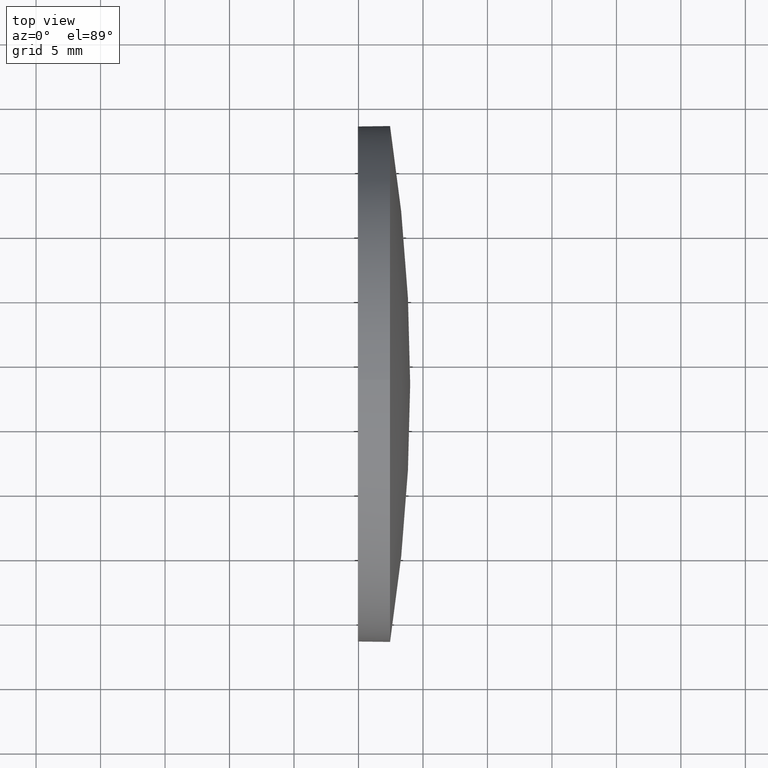
[diagram: clean part render]
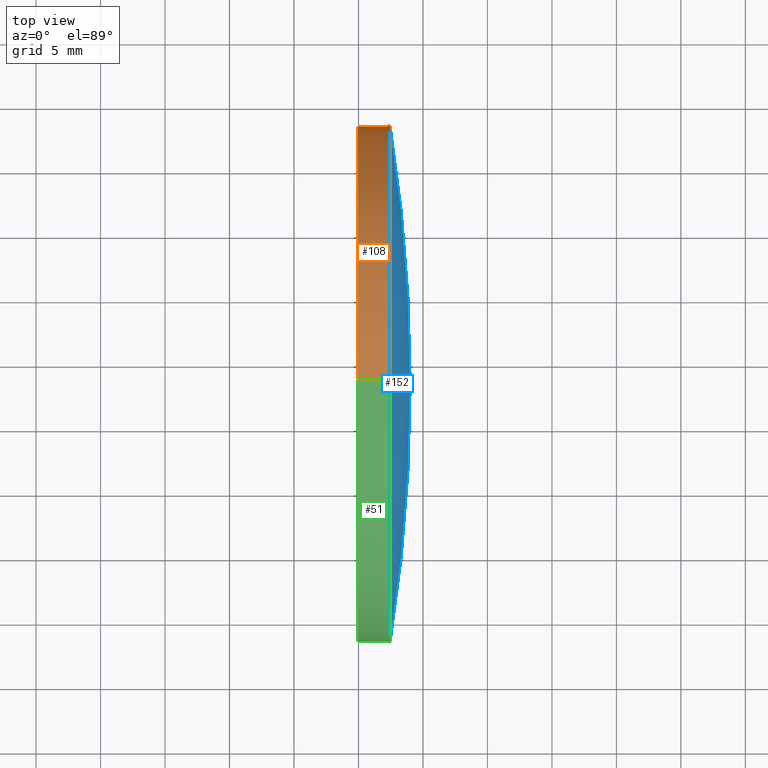
[diagram: same view with three faces highlighted in distinct colors, each labeled with its STEP entity id]
A machine part, top view with three faces highlighted in distinct colors.
Their STEP definitions:

[orange] entity #108 — the highlighted cylindrical surface (partial cylindrical patch) has radius 20 mm, axis along (-1, -0, -0).
#1 = CARTESIAN_POINT ( 'NONE',  ( 449.9479601243584200, 48.34004020051941100, 19.99999999999999600 ) ) ;
#2 = DIRECTION ( 'NONE',  ( -1.000000000000000000, -0.0000000000000000000, -0.0000000000000000000 ) ) ;
#5 = VECTOR ( 'NONE', #2, 1000.000000000000000 ) ;
#8 = VERTEX_POINT ( 'NONE', #184 ) ;
#12 = DIRECTION ( 'NONE',  ( -1.000000000000000000, -0.0000000000000000000, -0.0000000000000000000 ) ) ;
#25 = DIRECTION ( 'NONE',  ( 0.0000000000000000000, 0.0000000000000000000, 1.000000000000000000 ) ) ;
#26 = CARTESIAN_POINT ( 'NONE',  ( 452.4479601243584200, 48.34004020051941100, 0.0000000000000000000 ) ) ;
#27 = ORIENTED_EDGE ( 'NONE', *, *, #54, .T. ) ;
#29 = VERTEX_POINT ( 'NONE', #153 ) ;
#35 = CARTESIAN_POINT ( 'NONE',  ( 452.4479601243584200, 48.34004020051941100, 0.0000000000000000000 ) ) ;
#39 = DIRECTION ( 'NONE',  ( -1.000000000000000000, -0.0000000000000000000, -0.0000000000000000000 ) ) ;
#44 = AXIS2_PLACEMENT_3D ( 'NONE', #102, #39, #120 ) ;
#54 = EDGE_CURVE ( 'NONE', #78, #29, #75, .T. ) ;
#57 = DIRECTION ( 'NONE',  ( -1.000000000000000000, -0.0000000000000000000, -0.0000000000000000000 ) ) ;
#60 = VECTOR ( 'NONE', #87, 1000.000000000000000 ) ;
#66 = CIRCLE ( 'NONE', #145, 19.99999999999999600 ) ;
#74 = VERTEX_POINT ( 'NONE', #1 ) ;
#75 = LINE ( 'NONE', #115, #5 ) ;
#78 = VERTEX_POINT ( 'NONE', #127 ) ;
#83 = EDGE_LOOP ( 'NONE', ( #113, #27, #164, #129, #119 ) ) ;
#87 = DIRECTION ( 'NONE',  ( -1.000000000000000000, -0.0000000000000000000, -0.0000000000000000000 ) ) ;
#95 = CYLINDRICAL_SURFACE ( 'NONE', #186, 19.99999999999999600 ) ;
#97 = DIRECTION ( 'NONE',  ( -1.000000000000000000, -0.0000000000000000000, -0.0000000000000000000 ) ) ;
#102 = CARTESIAN_POINT ( 'NONE',  ( 449.9479601243584200, 48.34004020051941100, 0.0000000000000000000 ) ) ;
#108 = ADVANCED_FACE ( 'NONE', ( #132 ), #95, .T. ) ;
#110 = EDGE_CURVE ( 'NONE', #8, #139, #66, .T. ) ;
#113 = ORIENTED_EDGE ( 'NONE', *, *, #114, .T. ) ;
#114 = EDGE_CURVE ( 'NONE', #139, #78, #166, .T. ) ;
#115 = CARTESIAN_POINT ( 'NONE',  ( 445.2534169437813000, 48.34004020051941100, -19.99999999999999600 ) ) ;
#119 = ORIENTED_EDGE ( 'NONE', *, *, #110, .T. ) ;
#120 = DIRECTION ( 'NONE',  ( 0.0000000000000000000, 0.0000000000000000000, 1.000000000000000000 ) ) ;
#125 = EDGE_CURVE ( 'NONE', #8, #74, #149, .T. ) ;
#127 = CARTESIAN_POINT ( 'NONE',  ( 452.4479601243584200, 48.34004020051941100, -19.99999999999999600 ) ) ;
#129 = ORIENTED_EDGE ( 'NONE', *, *, #125, .F. ) ;
#131 = CARTESIAN_POINT ( 'NONE',  ( 452.4479601243584200, 68.34004020051948200, 2.449293598294701000E-015 ) ) ;
#132 = FACE_OUTER_BOUND ( 'NONE', #83, .T. ) ;
#139 = VERTEX_POINT ( 'NONE', #131 ) ;
#140 = CARTESIAN_POINT ( 'NONE',  ( 445.2534169437813000, 48.34004020051941100, 0.0000000000000000000 ) ) ;
#145 = AXIS2_PLACEMENT_3D ( 'NONE', #35, #12, #25 ) ;
#148 = EDGE_CURVE ( 'NONE', #74, #29, #163, .T. ) ;
#149 = LINE ( 'NONE', #180, #60 ) ;
#153 = CARTESIAN_POINT ( 'NONE',  ( 449.9479601243584200, 48.34004020051941100, -19.99999999999999600 ) ) ;
#161 = DIRECTION ( 'NONE',  ( 0.0000000000000000000, 0.0000000000000000000, 1.000000000000000000 ) ) ;
#163 = CIRCLE ( 'NONE', #44, 19.99999999999999600 ) ;
#164 = ORIENTED_EDGE ( 'NONE', *, *, #148, .F. ) ;
#166 = CIRCLE ( 'NONE', #179, 19.99999999999999600 ) ;
#179 = AXIS2_PLACEMENT_3D ( 'NONE', #26, #57, #161 ) ;
#180 = CARTESIAN_POINT ( 'NONE',  ( 445.2534169437813000, 48.34004020051941100, 19.99999999999999600 ) ) ;
#184 = CARTESIAN_POINT ( 'NONE',  ( 452.4479601243584200, 48.34004020051941100, 19.99999999999999600 ) ) ;
#185 = DIRECTION ( 'NONE',  ( 0.0000000000000000000, 0.0000000000000000000, 1.000000000000000000 ) ) ;
#186 = AXIS2_PLACEMENT_3D ( 'NONE', #140, #97, #185 ) ;

[blue] entity #152 — the highlighted spherical surface has radius 128.985 mm.
#8 = VERTEX_POINT ( 'NONE', #184 ) ;
#9 = ORIENTED_EDGE ( 'NONE', *, *, #76, .T. ) ;
#12 = DIRECTION ( 'NONE',  ( -1.000000000000000000, -0.0000000000000000000, -0.0000000000000000000 ) ) ;
#16 = DIRECTION ( 'NONE',  ( -1.000000000000000000, 0.0000000000000000000, 0.0000000000000000000 ) ) ;
#18 = SPHERICAL_SURFACE ( 'NONE', #49, 128.9851282051280900 ) ;
#22 = AXIS2_PLACEMENT_3D ( 'NONE', #146, #100, #16 ) ;
#25 = DIRECTION ( 'NONE',  ( 0.0000000000000000000, 0.0000000000000000000, 1.000000000000000000 ) ) ;
#32 = VERTEX_POINT ( 'NONE', #98 ) ;
#35 = CARTESIAN_POINT ( 'NONE',  ( 452.4479601243584200, 48.34004020051941100, 0.0000000000000000000 ) ) ;
#37 = DIRECTION ( 'NONE',  ( 0.0000000000000000000, -1.224646799147353200E-016, 1.000000000000000000 ) ) ;
#40 = DIRECTION ( 'NONE',  ( 0.0000000000000000000, 0.0000000000000000000, 1.000000000000000000 ) ) ;
#47 = CIRCLE ( 'NONE', #122, 19.99999999999999600 ) ;
#49 = AXIS2_PLACEMENT_3D ( 'NONE', #177, #144, #73 ) ;
#59 = CARTESIAN_POINT ( 'NONE',  ( 452.4479601243584200, 28.34004020051945700, 0.0000000000000000000 ) ) ;
#64 = CIRCLE ( 'NONE', #22, 128.9851282051280900 ) ;
#66 = CIRCLE ( 'NONE', #145, 19.99999999999999600 ) ;
#73 = DIRECTION ( 'NONE',  ( 0.0000000000000000000, -1.000000000000000000, 0.0000000000000000000 ) ) ;
#76 = EDGE_CURVE ( 'NONE', #32, #139, #103, .T. ) ;
#81 = CARTESIAN_POINT ( 'NONE',  ( 325.0228319192303300, 48.34004020051951800, 0.0000000000000000000 ) ) ;
#98 = CARTESIAN_POINT ( 'NONE',  ( 454.0079601243584200, 48.34004020051951000, 0.0000000000000000000 ) ) ;
#100 = DIRECTION ( 'NONE',  ( 0.0000000000000000000, 0.0000000000000000000, -1.000000000000000000 ) ) ;
#103 = CIRCLE ( 'NONE', #118, 128.9851282051280900 ) ;
#104 = EDGE_LOOP ( 'NONE', ( #109, #9, #154, #151 ) ) ;
#109 = ORIENTED_EDGE ( 'NONE', *, *, #123, .F. ) ;
#110 = EDGE_CURVE ( 'NONE', #8, #139, #66, .T. ) ;
#118 = AXIS2_PLACEMENT_3D ( 'NONE', #81, #37, #128 ) ;
#122 = AXIS2_PLACEMENT_3D ( 'NONE', #133, #178, #40 ) ;
#123 = EDGE_CURVE ( 'NONE', #32, #172, #64, .T. ) ;
#128 = DIRECTION ( 'NONE',  ( 0.0000000000000000000, -1.000000000000000000, -1.224646799147353200E-016 ) ) ;
#131 = CARTESIAN_POINT ( 'NONE',  ( 452.4479601243584200, 68.34004020051948200, 2.449293598294701000E-015 ) ) ;
#133 = CARTESIAN_POINT ( 'NONE',  ( 452.4479601243584200, 48.34004020051941100, 0.0000000000000000000 ) ) ;
#139 = VERTEX_POINT ( 'NONE', #131 ) ;
#144 = DIRECTION ( 'NONE',  ( 0.0000000000000000000, 0.0000000000000000000, 1.000000000000000000 ) ) ;
#145 = AXIS2_PLACEMENT_3D ( 'NONE', #35, #12, #25 ) ;
#146 = CARTESIAN_POINT ( 'NONE',  ( 325.0228319192303300, 48.34004020051951800, 0.0000000000000000000 ) ) ;
#151 = ORIENTED_EDGE ( 'NONE', *, *, #159, .F. ) ;
#152 = ADVANCED_FACE ( 'NONE', ( #181 ), #18, .T. ) ;
#154 = ORIENTED_EDGE ( 'NONE', *, *, #110, .F. ) ;
#159 = EDGE_CURVE ( 'NONE', #172, #8, #47, .T. ) ;
#172 = VERTEX_POINT ( 'NONE', #59 ) ;
#177 = CARTESIAN_POINT ( 'NONE',  ( 325.0228319192303300, 48.34004020051951800, 0.0000000000000000000 ) ) ;
#178 = DIRECTION ( 'NONE',  ( -1.000000000000000000, -0.0000000000000000000, -0.0000000000000000000 ) ) ;
#181 = FACE_OUTER_BOUND ( 'NONE', #104, .T. ) ;
#184 = CARTESIAN_POINT ( 'NONE',  ( 452.4479601243584200, 48.34004020051941100, 19.99999999999999600 ) ) ;

[green] entity #51 — the highlighted cylindrical surface (partial cylindrical patch) has radius 20 mm, axis along (-1, -0, -0).
#1 = CARTESIAN_POINT ( 'NONE',  ( 449.9479601243584200, 48.34004020051941100, 19.99999999999999600 ) ) ;
#2 = DIRECTION ( 'NONE',  ( -1.000000000000000000, -0.0000000000000000000, -0.0000000000000000000 ) ) ;
#4 = DIRECTION ( 'NONE',  ( -1.000000000000000000, -0.0000000000000000000, -0.0000000000000000000 ) ) ;
#5 = VECTOR ( 'NONE', #2, 1000.000000000000000 ) ;
#8 = VERTEX_POINT ( 'NONE', #184 ) ;
#10 = EDGE_CURVE ( 'NONE', #29, #74, #50, .T. ) ;
#13 = DIRECTION ( 'NONE',  ( 0.0000000000000000000, 0.0000000000000000000, 1.000000000000000000 ) ) ;
#15 = AXIS2_PLACEMENT_3D ( 'NONE', #71, #4, #112 ) ;
#17 = ORIENTED_EDGE ( 'NONE', *, *, #125, .T. ) ;
#23 = ORIENTED_EDGE ( 'NONE', *, *, #159, .T. ) ;
#29 = VERTEX_POINT ( 'NONE', #153 ) ;
#30 = AXIS2_PLACEMENT_3D ( 'NONE', #82, #175, #141 ) ;
#40 = DIRECTION ( 'NONE',  ( 0.0000000000000000000, 0.0000000000000000000, 1.000000000000000000 ) ) ;
#47 = CIRCLE ( 'NONE', #122, 19.99999999999999600 ) ;
#50 = CIRCLE ( 'NONE', #15, 19.99999999999999600 ) ;
#51 = ADVANCED_FACE ( 'NONE', ( #156 ), #70, .T. ) ;
#54 = EDGE_CURVE ( 'NONE', #78, #29, #75, .T. ) ;
#55 = CARTESIAN_POINT ( 'NONE',  ( 452.4479601243584200, 48.34004020051941100, 0.0000000000000000000 ) ) ;
#59 = CARTESIAN_POINT ( 'NONE',  ( 452.4479601243584200, 28.34004020051945700, 0.0000000000000000000 ) ) ;
#60 = VECTOR ( 'NONE', #87, 1000.000000000000000 ) ;
#65 = ORIENTED_EDGE ( 'NONE', *, *, #99, .T. ) ;
#69 = ORIENTED_EDGE ( 'NONE', *, *, #10, .F. ) ;
#70 = CYLINDRICAL_SURFACE ( 'NONE', #30, 19.99999999999999600 ) ;
#71 = CARTESIAN_POINT ( 'NONE',  ( 449.9479601243584200, 48.34004020051941100, 0.0000000000000000000 ) ) ;
#74 = VERTEX_POINT ( 'NONE', #1 ) ;
#75 = LINE ( 'NONE', #115, #5 ) ;
#78 = VERTEX_POINT ( 'NONE', #127 ) ;
#82 = CARTESIAN_POINT ( 'NONE',  ( 445.2534169437813000, 48.34004020051941100, 0.0000000000000000000 ) ) ;
#87 = DIRECTION ( 'NONE',  ( -1.000000000000000000, -0.0000000000000000000, -0.0000000000000000000 ) ) ;
#99 = EDGE_CURVE ( 'NONE', #78, #172, #111, .T. ) ;
#105 = EDGE_LOOP ( 'NONE', ( #124, #65, #23, #17, #69 ) ) ;
#111 = CIRCLE ( 'NONE', #138, 19.99999999999999600 ) ;
#112 = DIRECTION ( 'NONE',  ( 0.0000000000000000000, 0.0000000000000000000, 1.000000000000000000 ) ) ;
#115 = CARTESIAN_POINT ( 'NONE',  ( 445.2534169437813000, 48.34004020051941100, -19.99999999999999600 ) ) ;
#122 = AXIS2_PLACEMENT_3D ( 'NONE', #133, #178, #40 ) ;
#124 = ORIENTED_EDGE ( 'NONE', *, *, #54, .F. ) ;
#125 = EDGE_CURVE ( 'NONE', #8, #74, #149, .T. ) ;
#127 = CARTESIAN_POINT ( 'NONE',  ( 452.4479601243584200, 48.34004020051941100, -19.99999999999999600 ) ) ;
#133 = CARTESIAN_POINT ( 'NONE',  ( 452.4479601243584200, 48.34004020051941100, 0.0000000000000000000 ) ) ;
#138 = AXIS2_PLACEMENT_3D ( 'NONE', #55, #174, #13 ) ;
#141 = DIRECTION ( 'NONE',  ( 0.0000000000000000000, 0.0000000000000000000, 1.000000000000000000 ) ) ;
#149 = LINE ( 'NONE', #180, #60 ) ;
#153 = CARTESIAN_POINT ( 'NONE',  ( 449.9479601243584200, 48.34004020051941100, -19.99999999999999600 ) ) ;
#156 = FACE_OUTER_BOUND ( 'NONE', #105, .T. ) ;
#159 = EDGE_CURVE ( 'NONE', #172, #8, #47, .T. ) ;
#172 = VERTEX_POINT ( 'NONE', #59 ) ;
#174 = DIRECTION ( 'NONE',  ( -1.000000000000000000, -0.0000000000000000000, -0.0000000000000000000 ) ) ;
#175 = DIRECTION ( 'NONE',  ( -1.000000000000000000, -0.0000000000000000000, -0.0000000000000000000 ) ) ;
#178 = DIRECTION ( 'NONE',  ( -1.000000000000000000, -0.0000000000000000000, -0.0000000000000000000 ) ) ;
#180 = CARTESIAN_POINT ( 'NONE',  ( 445.2534169437813000, 48.34004020051941100, 19.99999999999999600 ) ) ;
#184 = CARTESIAN_POINT ( 'NONE',  ( 452.4479601243584200, 48.34004020051941100, 19.99999999999999600 ) ) ;